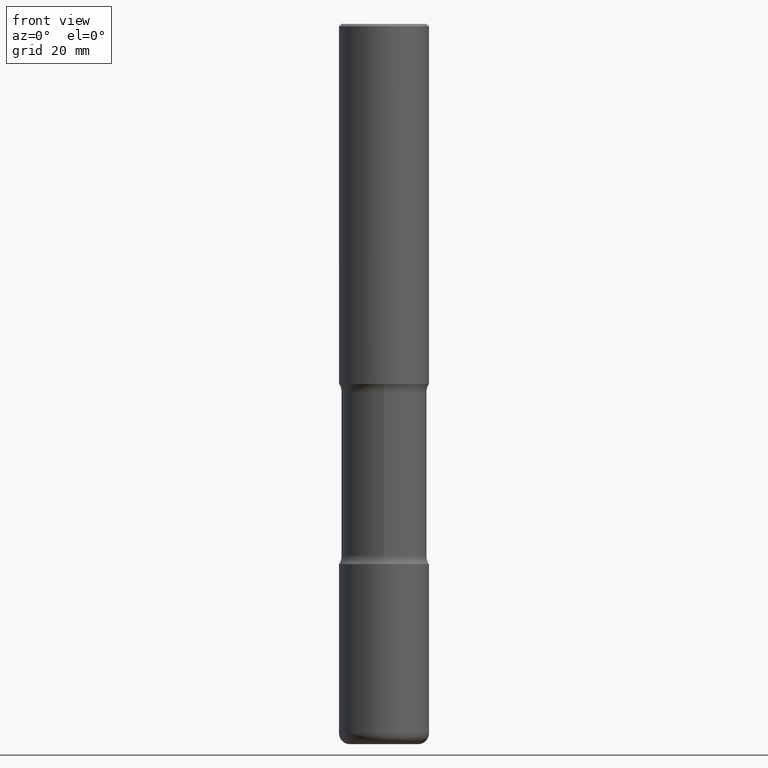
[diagram: clean part render]
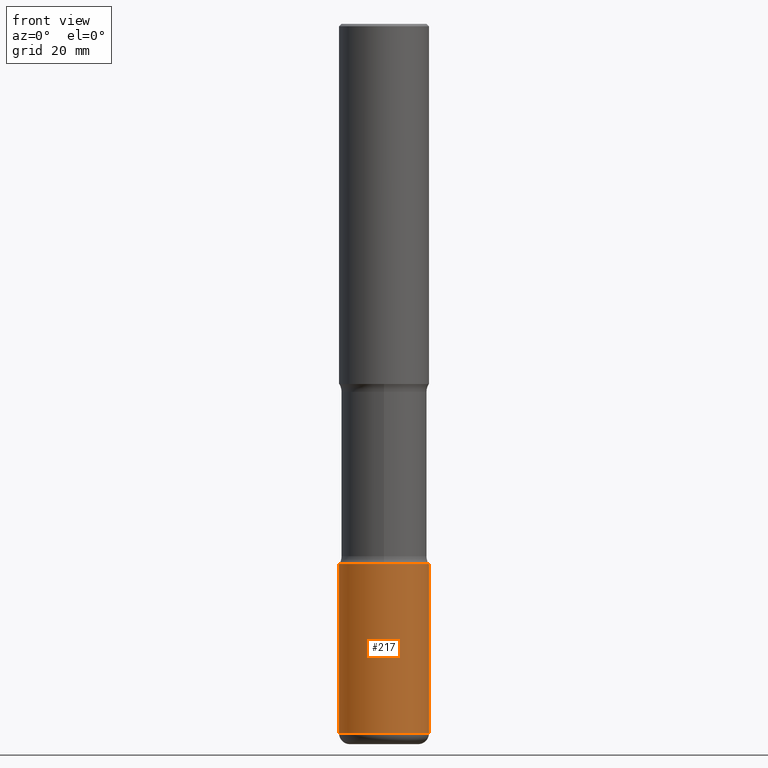
[diagram: same view with one face highlighted and labeled with its STEP entity id]
A machine part, front view. The second image highlights one B-rep face of the part: STEP entity #217.
In plain terms, the highlighted cylindrical surface (partial cylindrical patch) has radius 9.525 mm, axis along (-0, 0, 1).
Its self-contained STEP definition (entity closure, byte-faithful):
#4 = EDGE_CURVE ( 'NONE', #153, #480, #57, .T. ) ;
#11 = ORIENTED_EDGE ( 'NONE', *, *, #488, .F. ) ;
#28 = DIRECTION ( 'NONE',  ( -2.445468806185136877E-29, 3.491481338843145188E-15, 1.000000000000000000 ) ) ;
#38 = ORIENTED_EDGE ( 'NONE', *, *, #348, .T. ) ;
#44 = DIRECTION ( 'NONE',  ( 1.000000000000000000, -6.982962677686265922E-15, 4.876176775795935793E-29 ) ) ;
#57 = LINE ( 'NONE', #272, #175 ) ;
#60 = CARTESIAN_POINT ( 'NONE',  ( 0.3750000000000003886, -1.833027702892650691E-14, -4.499999999999999112 ) ) ;
#65 = DIRECTION ( 'NONE',  ( -2.445468806185136597E-29, 3.491481338843145583E-15, 1.000000000000000000 ) ) ;
#76 = VERTEX_POINT ( 'NONE', #60 ) ;
#77 = CARTESIAN_POINT ( 'NONE',  ( 0.000000000000000000, 0.000000000000000000, 0.000000000000000000 ) ) ;
#92 = CARTESIAN_POINT ( 'NONE',  ( -0.3750000000000003886, -1.550862510957819116E-14, -4.499999999999999112 ) ) ;
#130 = CIRCLE ( 'NONE', #203, 0.3750000000000004996 ) ;
#146 = DIRECTION ( 'NONE',  ( -2.445468806185136877E-29, 3.491481338843145188E-15, 1.000000000000000000 ) ) ;
#153 = VERTEX_POINT ( 'NONE', #383 ) ;
#175 = VECTOR ( 'NONE', #146, 39.37007874015748143 ) ;
#180 = DIRECTION ( 'NONE',  ( 1.000000000000000000, -6.982962677686263555E-15, 0.000000000000000000 ) ) ;
#185 = VERTEX_POINT ( 'NONE', #559 ) ;
#203 = AXIS2_PLACEMENT_3D ( 'NONE', #347, #477, #180 ) ;
#209 = CYLINDRICAL_SURFACE ( 'NONE', #301, 0.3750000000000004441 ) ;
#212 = DIRECTION ( 'NONE',  ( -2.445468806185136597E-29, 3.491481338843145583E-15, 1.000000000000000000 ) ) ;
#217 = ADVANCED_FACE ( 'NONE', ( #415 ), #209, .T. ) ;
#224 = CIRCLE ( 'NONE', #403, 0.3750000000000003886 ) ;
#237 = DIRECTION ( 'NONE',  ( 1.000000000000000000, -6.982962677686265922E-15, 0.000000000000000000 ) ) ;
#267 = EDGE_LOOP ( 'NONE', ( #528, #38, #549, #11 ) ) ;
#272 = CARTESIAN_POINT ( 'NONE',  ( -0.3750000000000004441, 2.664535259100378852E-15, -1.844600658845591840E-29 ) ) ;
#301 = AXIS2_PLACEMENT_3D ( 'NONE', #77, #212, #44 ) ;
#347 = CARTESIAN_POINT ( 'NONE',  ( 1.445272064455415119E-28, -2.063465471256298313E-14, -5.909999999999997478 ) ) ;
#348 = EDGE_CURVE ( 'NONE', #153, #185, #130, .T. ) ;
#362 = CARTESIAN_POINT ( 'NONE',  ( 1.100460962783311244E-28, -1.571166602479415374E-14, -4.499999999999999112 ) ) ;
#383 = CARTESIAN_POINT ( 'NONE',  ( -0.3750000000000006661, -1.797011945346260428E-14, -5.909999999999997478 ) ) ;
#403 = AXIS2_PLACEMENT_3D ( 'NONE', #362, #65, #237 ) ;
#415 = FACE_OUTER_BOUND ( 'NONE', #267, .T. ) ;
#418 = VECTOR ( 'NONE', #28, 39.37007874015748143 ) ;
#447 = LINE ( 'NONE', #529, #418 ) ;
#477 = DIRECTION ( 'NONE',  ( -2.445468806185136597E-29, 3.491481338843145583E-15, 1.000000000000000000 ) ) ;
#480 = VERTEX_POINT ( 'NONE', #92 ) ;
#488 = EDGE_CURVE ( 'NONE', #480, #76, #224, .T. ) ;
#489 = EDGE_CURVE ( 'NONE', #185, #76, #447, .T. ) ;
#528 = ORIENTED_EDGE ( 'NONE', *, *, #4, .F. ) ;
#529 = CARTESIAN_POINT ( 'NONE',  ( 0.3750000000000004441, -2.618611004132352777E-15, 1.828566290923478164E-29 ) ) ;
#549 = ORIENTED_EDGE ( 'NONE', *, *, #489, .T. ) ;
#559 = CARTESIAN_POINT ( 'NONE',  ( 0.3750000000000006661, -2.325326571669533630E-14, -5.909999999999997478 ) ) ;